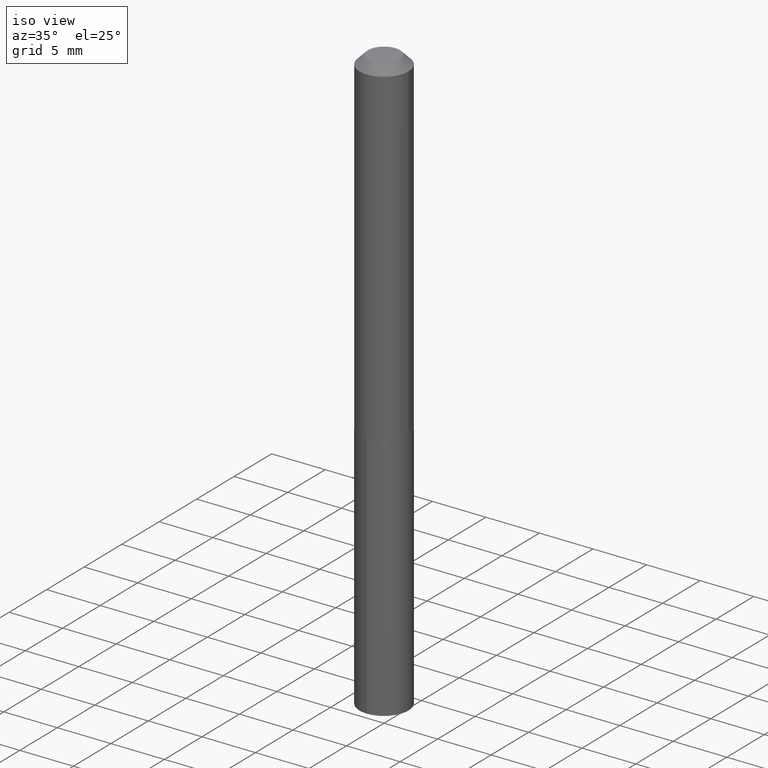
[diagram: clean part render]
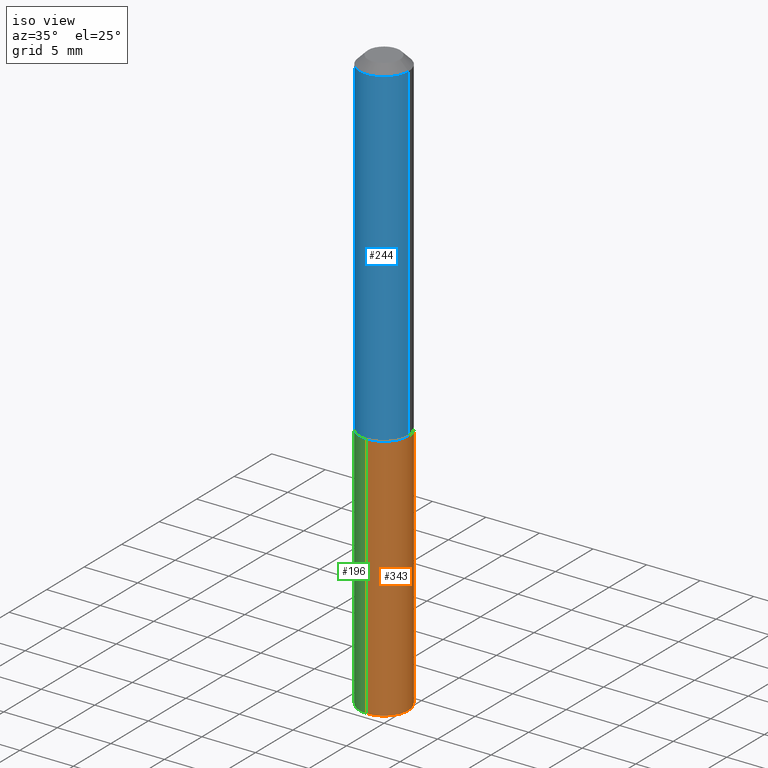
[diagram: same view with three faces highlighted in distinct colors, each labeled with its STEP entity id]
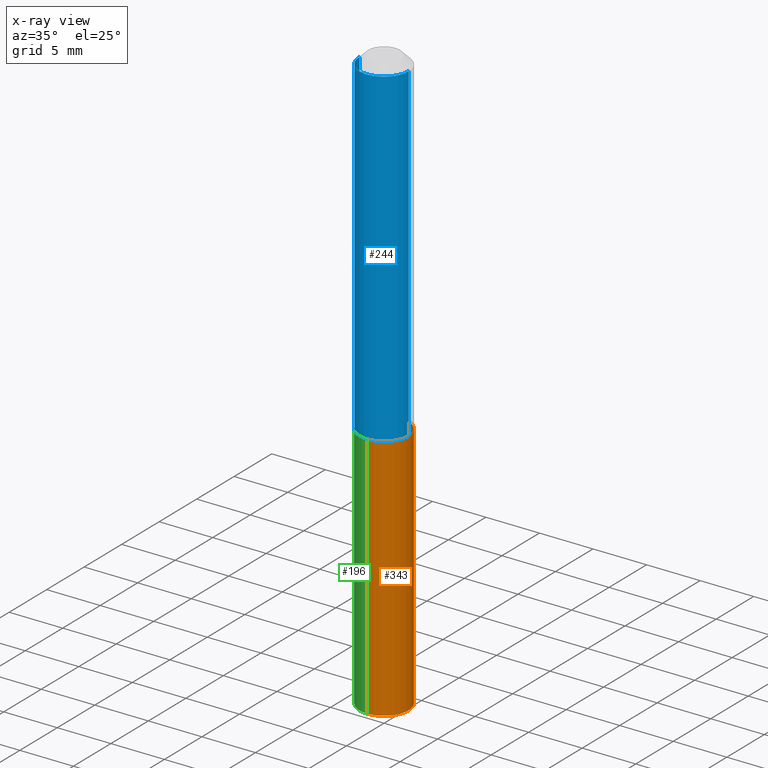
[diagram: x-ray of the same camera — body ghosted, the three highlighted faces saturated]
A machine part, iso view with three faces highlighted in distinct colors.
The next image is the same camera in x-ray (body ghosted, the three faces saturated) — at least one of them is partly hidden behind the body in this view.
Their STEP definitions:

[orange] entity #343 — the highlighted cylindrical surface (edge-blend (fillet) strip) has radius 2.286 mm, axis along (-0, 0, 1).
#11 = AXIS2_PLACEMENT_3D ( 'NONE', #107, #116, #170 ) ;
#15 = DIRECTION ( 'NONE',  ( -2.445564806942937386E-29, 3.491343860293950620E-15, 1.000000000000000000 ) ) ;
#20 = VERTEX_POINT ( 'NONE', #245 ) ;
#25 = CARTESIAN_POINT ( 'NONE',  ( -6.284666409917335934E-16, -0.09000000000000432654, -1.242499999999999938 ) ) ;
#26 = DIRECTION ( 'NONE',  ( -6.982962677686265133E-15, -1.000000000000000000, 3.035386659626959132E-15 ) ) ;
#52 = ORIENTED_EDGE ( 'NONE', *, *, #78, .F. ) ;
#76 = CYLINDRICAL_SURFACE ( 'NONE', #279, 0.08999999999999999667 ) ;
#78 = EDGE_CURVE ( 'NONE', #20, #223, #306, .T. ) ;
#82 = EDGE_CURVE ( 'NONE', #223, #376, #242, .T. ) ;
#83 = CARTESIAN_POINT ( 'NONE',  ( 3.038494991685032647E-29, -4.338165563512609129E-15, -1.242500000000000160 ) ) ;
#95 = ORIENTED_EDGE ( 'NONE', *, *, #256, .T. ) ;
#103 = DIRECTION ( 'NONE',  ( -2.445564806942937386E-29, 3.491343860293951015E-15, 1.000000000000000000 ) ) ;
#106 = EDGE_LOOP ( 'NONE', ( #95, #114, #284, #52 ) ) ;
#107 = CARTESIAN_POINT ( 'NONE',  ( 5.269443582633451570E-29, -7.523118439644238863E-15, -2.154742678916042209 ) ) ;
#109 = DIRECTION ( 'NONE',  ( -6.982962677686265133E-15, -1.000000000000000000, 3.035386659626959132E-15 ) ) ;
#114 = ORIENTED_EDGE ( 'NONE', *, *, #218, .T. ) ;
#116 = DIRECTION ( 'NONE',  ( -2.445564806942937386E-29, 3.491343860293951015E-15, 1.000000000000000000 ) ) ;
#169 = DIRECTION ( 'NONE',  ( -2.445564806942937386E-29, 3.491343860293951015E-15, 1.000000000000000000 ) ) ;
#170 = DIRECTION ( 'NONE',  ( -6.982962677686265133E-15, -1.000000000000000000, 3.035386659626959132E-15 ) ) ;
#199 = VECTOR ( 'NONE', #15, 39.37007874015748143 ) ;
#202 = LINE ( 'NONE', #313, #335 ) ;
#218 = EDGE_CURVE ( 'NONE', #268, #376, #202, .T. ) ;
#223 = VERTEX_POINT ( 'NONE', #389 ) ;
#229 = DIRECTION ( 'NONE',  ( -2.445564806942937386E-29, 3.491343860293950620E-15, 1.000000000000000000 ) ) ;
#239 = CIRCLE ( 'NONE', #11, 0.08999999999999999667 ) ;
#242 = CIRCLE ( 'NONE', #290, 0.08999999999999999667 ) ;
#245 = CARTESIAN_POINT ( 'NONE',  ( -6.284666409917110122E-16, -0.09000000000000749067, -2.154742678916041765 ) ) ;
#253 = CARTESIAN_POINT ( 'NONE',  ( 3.038494991685032647E-29, -4.338165563512609129E-15, -1.242500000000000160 ) ) ;
#256 = EDGE_CURVE ( 'NONE', #20, #268, #239, .T. ) ;
#268 = VERTEX_POINT ( 'NONE', #345 ) ;
#279 = AXIS2_PLACEMENT_3D ( 'NONE', #83, #169, #26 ) ;
#284 = ORIENTED_EDGE ( 'NONE', *, *, #82, .F. ) ;
#290 = AXIS2_PLACEMENT_3D ( 'NONE', #253, #103, #109 ) ;
#306 = LINE ( 'NONE', #25, #199 ) ;
#313 = CARTESIAN_POINT ( 'NONE',  ( 6.394884621841203175E-16, 0.08999999999999565292, -1.242500000000000382 ) ) ;
#335 = VECTOR ( 'NONE', #229, 39.37007874015748143 ) ;
#340 = FACE_OUTER_BOUND ( 'NONE', #106, .T. ) ;
#343 = ADVANCED_FACE ( 'NONE', ( #340 ), #76, .T. ) ;
#345 = CARTESIAN_POINT ( 'NONE',  ( 6.394884621841425043E-16, 0.08999999999999243327, -2.154742678916042653 ) ) ;
#376 = VERTEX_POINT ( 'NONE', #390 ) ;
#389 = CARTESIAN_POINT ( 'NONE',  ( -6.284666409917335934E-16, -0.09000000000000432654, -1.242499999999999938 ) ) ;
#390 = CARTESIAN_POINT ( 'NONE',  ( 6.394884621841428987E-16, 0.08999999999999565292, -1.242500000000000382 ) ) ;

[blue] entity #244 — the highlighted cylindrical surface (edge-blend (fillet) strip) has radius 2.286 mm, axis along (-0, 0, 1).
#5 = CARTESIAN_POINT ( 'NONE',  ( 0.08999999999999999667, -7.375754328306130652E-16, -0.03125000000000020817 ) ) ;
#18 = CARTESIAN_POINT ( 'NONE',  ( -0.09000000000000006606, 6.394884621840906367E-16, -4.427041581229418623E-30 ) ) ;
#22 = AXIS2_PLACEMENT_3D ( 'NONE', #110, #51, #282 ) ;
#34 = DIRECTION ( 'NONE',  ( 1.000000000000000000, -6.982962677686266711E-15, 0.000000000000000000 ) ) ;
#37 = VECTOR ( 'NONE', #341, 39.37007874015748143 ) ;
#51 = DIRECTION ( 'NONE',  ( -2.445468806185136597E-29, 3.491481338843145583E-15, 1.000000000000000000 ) ) ;
#57 = ORIENTED_EDGE ( 'NONE', *, *, #92, .T. ) ;
#58 = DIRECTION ( 'NONE',  ( -2.445468806185136597E-29, 3.491481338843145583E-15, 1.000000000000000000 ) ) ;
#73 = VERTEX_POINT ( 'NONE', #220 ) ;
#84 = VERTEX_POINT ( 'NONE', #5 ) ;
#85 = CIRCLE ( 'NONE', #297, 0.09000000000000013545 ) ;
#92 = EDGE_CURVE ( 'NONE', #73, #184, #85, .T. ) ;
#110 = CARTESIAN_POINT ( 'NONE',  ( 0.000000000000000000, 0.000000000000000000, 0.000000000000000000 ) ) ;
#126 = VERTEX_POINT ( 'NONE', #261 ) ;
#137 = FACE_OUTER_BOUND ( 'NONE', #303, .T. ) ;
#141 = CARTESIAN_POINT ( 'NONE',  ( 0.09000000000000013545, -4.964886463834952576E-15, -1.242000000000000215 ) ) ;
#145 = ORIENTED_EDGE ( 'NONE', *, *, #203, .F. ) ;
#184 = VERTEX_POINT ( 'NONE', #141 ) ;
#194 = CARTESIAN_POINT ( 'NONE',  ( 0.09000000000000006606, -6.284666409917644575E-16, 4.388559098216345437E-30 ) ) ;
#195 = LINE ( 'NONE', #18, #37 ) ;
#198 = DIRECTION ( 'NONE',  ( -2.445468806185136877E-29, 3.491481338843145188E-15, 1.000000000000000000 ) ) ;
#203 = EDGE_CURVE ( 'NONE', #73, #126, #195, .T. ) ;
#211 = CIRCLE ( 'NONE', #299, 0.08999999999999999667 ) ;
#216 = CARTESIAN_POINT ( 'NONE',  ( 7.642090019328602662E-31, -1.091087918388490267E-16, -0.03125000000000020817 ) ) ;
#220 = CARTESIAN_POINT ( 'NONE',  ( -0.09000000000000013545, -3.696931360659096890E-15, -1.242000000000000215 ) ) ;
#236 = DIRECTION ( 'NONE',  ( 1.000000000000000000, -6.982962677686263555E-15, 0.000000000000000000 ) ) ;
#244 = ADVANCED_FACE ( 'NONE', ( #137 ), #381, .T. ) ;
#261 = CARTESIAN_POINT ( 'NONE',  ( -0.08999999999999999667, -1.583275845156927233E-15, -0.03125000000000020817 ) ) ;
#264 = EDGE_CURVE ( 'NONE', #184, #84, #387, .T. ) ;
#281 = ORIENTED_EDGE ( 'NONE', *, *, #264, .T. ) ;
#282 = DIRECTION ( 'NONE',  ( 1.000000000000000000, -6.982962677686266711E-15, 4.876176775795935793E-29 ) ) ;
#293 = ORIENTED_EDGE ( 'NONE', *, *, #301, .F. ) ;
#297 = AXIS2_PLACEMENT_3D ( 'NONE', #360, #58, #236 ) ;
#299 = AXIS2_PLACEMENT_3D ( 'NONE', #216, #331, #34 ) ;
#301 = EDGE_CURVE ( 'NONE', #126, #84, #211, .T. ) ;
#303 = EDGE_LOOP ( 'NONE', ( #145, #57, #281, #293 ) ) ;
#312 = VECTOR ( 'NONE', #198, 39.37007874015748143 ) ;
#331 = DIRECTION ( 'NONE',  ( -2.445468806185136597E-29, 3.491481338843145583E-15, 1.000000000000000000 ) ) ;
#341 = DIRECTION ( 'NONE',  ( -2.445468806185136877E-29, 3.491481338843145188E-15, 1.000000000000000000 ) ) ;
#360 = CARTESIAN_POINT ( 'NONE',  ( 3.037272257281940407E-29, -4.336419822843187625E-15, -1.242000000000000215 ) ) ;
#381 = CYLINDRICAL_SURFACE ( 'NONE', #22, 0.09000000000000006606 ) ;
#387 = LINE ( 'NONE', #194, #312 ) ;

[green] entity #196 — the highlighted cylindrical surface (edge-blend (fillet) strip) has radius 2.286 mm, axis along (-0, 0, 1).
#7 = EDGE_LOOP ( 'NONE', ( #226, #366, #43, #367 ) ) ;
#15 = DIRECTION ( 'NONE',  ( -2.445564806942937386E-29, 3.491343860293950620E-15, 1.000000000000000000 ) ) ;
#20 = VERTEX_POINT ( 'NONE', #245 ) ;
#25 = CARTESIAN_POINT ( 'NONE',  ( -6.284666409917335934E-16, -0.09000000000000432654, -1.242499999999999938 ) ) ;
#43 = ORIENTED_EDGE ( 'NONE', *, *, #78, .T. ) ;
#44 = DIRECTION ( 'NONE',  ( -6.982962677686265133E-15, -1.000000000000000000, 3.035386659626959132E-15 ) ) ;
#65 = DIRECTION ( 'NONE',  ( -6.982962677686265133E-15, -1.000000000000000000, 3.035386659626959132E-15 ) ) ;
#67 = EDGE_CURVE ( 'NONE', #268, #20, #344, .T. ) ;
#74 = DIRECTION ( 'NONE',  ( -2.445564806942937386E-29, 3.491343860293951015E-15, 1.000000000000000000 ) ) ;
#78 = EDGE_CURVE ( 'NONE', #20, #223, #306, .T. ) ;
#81 = DIRECTION ( 'NONE',  ( -2.445564806942937386E-29, 3.491343860293951015E-15, 1.000000000000000000 ) ) ;
#96 = DIRECTION ( 'NONE',  ( -6.982962677686265133E-15, -1.000000000000000000, 3.035386659626959132E-15 ) ) ;
#101 = CARTESIAN_POINT ( 'NONE',  ( 3.038494991685032647E-29, -4.338165563512609129E-15, -1.242500000000000160 ) ) ;
#112 = CARTESIAN_POINT ( 'NONE',  ( 3.038494991685032647E-29, -4.338165563512609129E-15, -1.242500000000000160 ) ) ;
#113 = AXIS2_PLACEMENT_3D ( 'NONE', #101, #74, #65 ) ;
#128 = CARTESIAN_POINT ( 'NONE',  ( 5.269443582633451570E-29, -7.523118439644238863E-15, -2.154742678916042209 ) ) ;
#138 = CIRCLE ( 'NONE', #113, 0.08999999999999999667 ) ;
#149 = EDGE_CURVE ( 'NONE', #376, #223, #138, .T. ) ;
#196 = ADVANCED_FACE ( 'NONE', ( #200 ), #383, .T. ) ;
#199 = VECTOR ( 'NONE', #15, 39.37007874015748143 ) ;
#200 = FACE_OUTER_BOUND ( 'NONE', #7, .T. ) ;
#202 = LINE ( 'NONE', #313, #335 ) ;
#218 = EDGE_CURVE ( 'NONE', #268, #376, #202, .T. ) ;
#223 = VERTEX_POINT ( 'NONE', #389 ) ;
#226 = ORIENTED_EDGE ( 'NONE', *, *, #218, .F. ) ;
#229 = DIRECTION ( 'NONE',  ( -2.445564806942937386E-29, 3.491343860293950620E-15, 1.000000000000000000 ) ) ;
#245 = CARTESIAN_POINT ( 'NONE',  ( -6.284666409917110122E-16, -0.09000000000000749067, -2.154742678916041765 ) ) ;
#268 = VERTEX_POINT ( 'NONE', #345 ) ;
#306 = LINE ( 'NONE', #25, #199 ) ;
#313 = CARTESIAN_POINT ( 'NONE',  ( 6.394884621841203175E-16, 0.08999999999999565292, -1.242500000000000382 ) ) ;
#335 = VECTOR ( 'NONE', #229, 39.37007874015748143 ) ;
#344 = CIRCLE ( 'NONE', #380, 0.08999999999999999667 ) ;
#345 = CARTESIAN_POINT ( 'NONE',  ( 6.394884621841425043E-16, 0.08999999999999243327, -2.154742678916042653 ) ) ;
#356 = AXIS2_PLACEMENT_3D ( 'NONE', #112, #81, #44 ) ;
#366 = ORIENTED_EDGE ( 'NONE', *, *, #67, .T. ) ;
#367 = ORIENTED_EDGE ( 'NONE', *, *, #149, .F. ) ;
#370 = DIRECTION ( 'NONE',  ( -2.445564806942937386E-29, 3.491343860293951015E-15, 1.000000000000000000 ) ) ;
#376 = VERTEX_POINT ( 'NONE', #390 ) ;
#380 = AXIS2_PLACEMENT_3D ( 'NONE', #128, #370, #96 ) ;
#383 = CYLINDRICAL_SURFACE ( 'NONE', #356, 0.08999999999999999667 ) ;
#389 = CARTESIAN_POINT ( 'NONE',  ( -6.284666409917335934E-16, -0.09000000000000432654, -1.242499999999999938 ) ) ;
#390 = CARTESIAN_POINT ( 'NONE',  ( 6.394884621841428987E-16, 0.08999999999999565292, -1.242500000000000382 ) ) ;